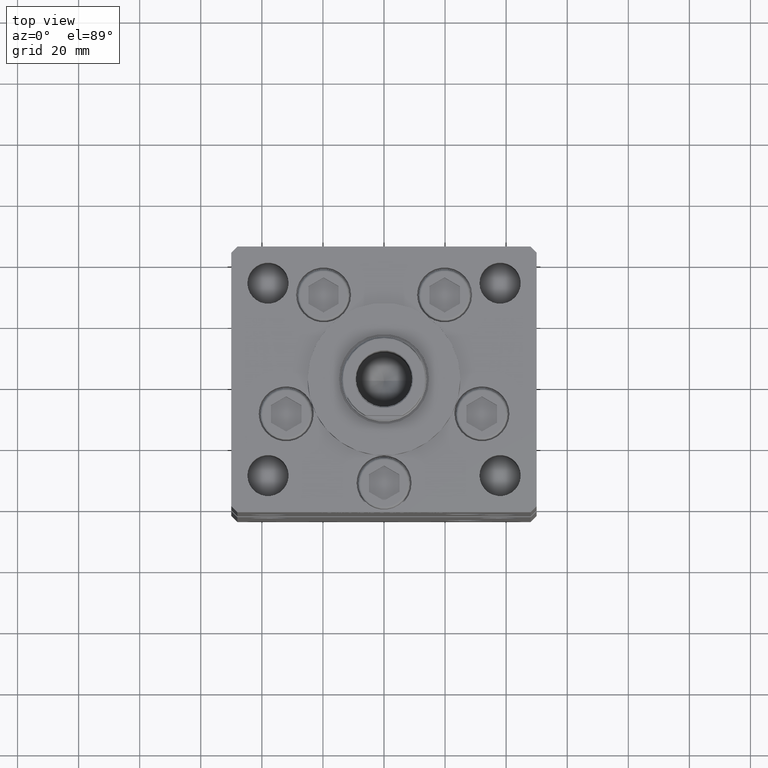
[diagram: clean part render]
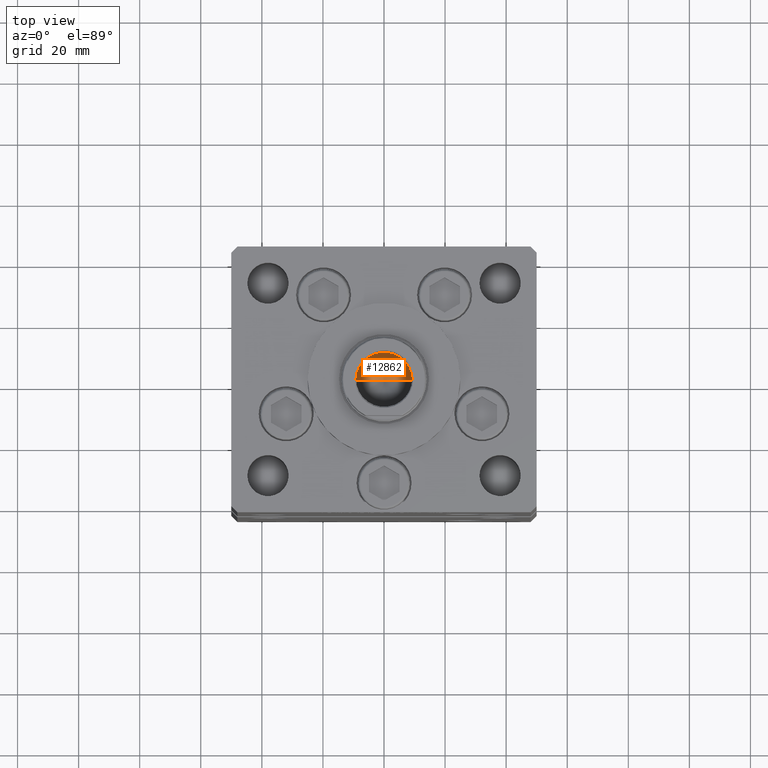
[diagram: same view with one face highlighted and labeled with its STEP entity id]
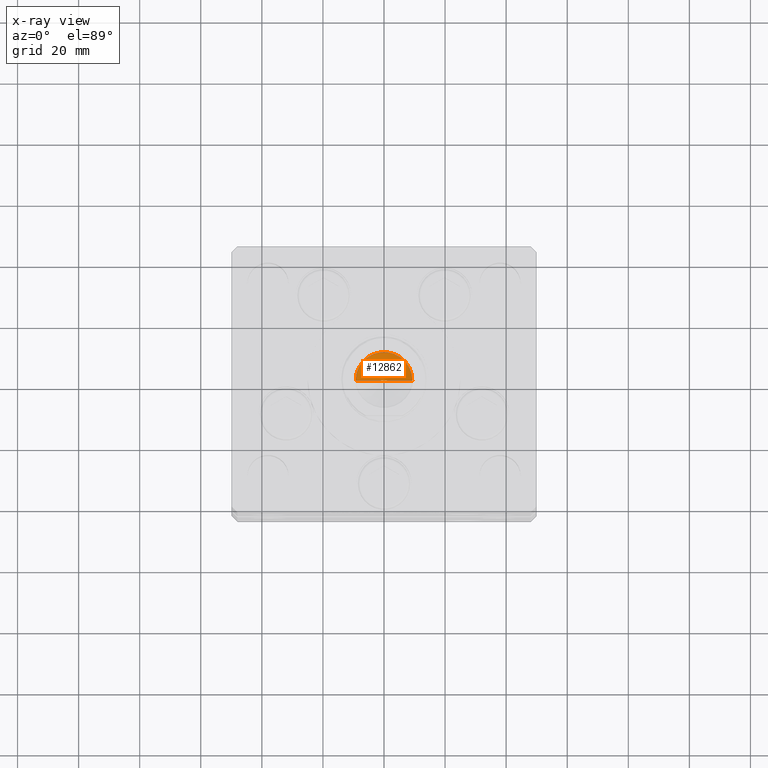
[diagram: x-ray of the same camera — body ghosted, the highlighted face saturated]
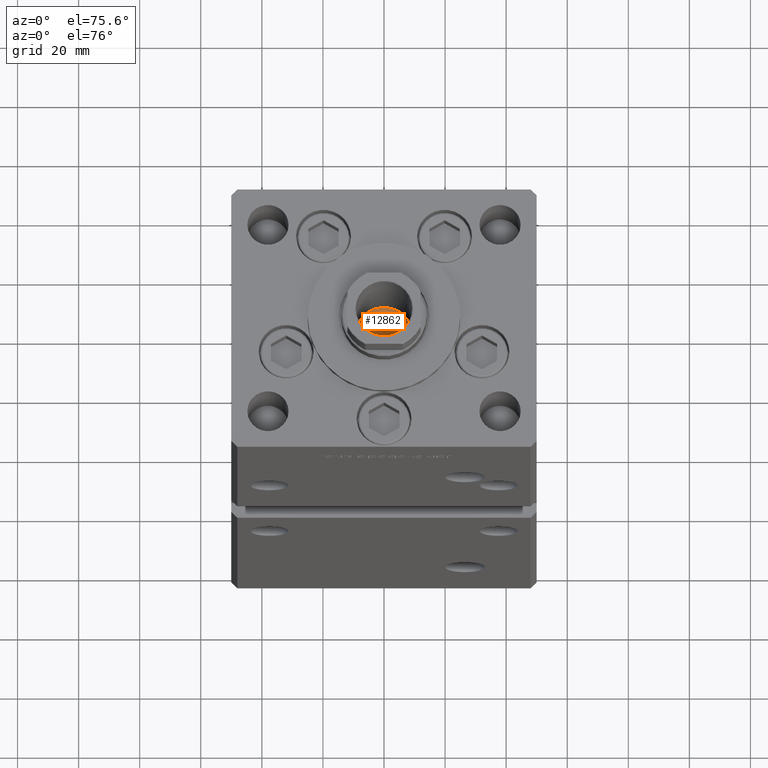
[diagram: same view with one face highlighted and labeled with its STEP entity id]
A machine part, top view. The second image highlights one B-rep face of the part: STEP entity #12862.
The next image is the same camera in x-ray: the body ghosted, the highlighted face saturated — about 0% of this face is hidden behind the body in this view.
A second angle (auxiliary view) of the same face is appended — the face is thin or edge-on in the first view.
In plain terms, the highlighted conical surface has half-angle 59 deg.
Its self-contained STEP definition (entity closure, byte-faithful):
#2454 = DIRECTION ( 'NONE',  ( -0.000000000000000000, -0.000000000000000000, 1.000000000000000000 ) ) ;
#7386 = ORIENTED_EDGE ( 'NONE', *, *, #11976, .T. ) ;
#10672 = DIRECTION ( 'NONE',  ( -0.8571673007021117785, 1.049727191138617956E-16, 0.5150380749100550437 ) ) ;
#11976 = EDGE_CURVE ( 'NONE', #41357, #48078, #32879, .T. ) ;
#12862 = ADVANCED_FACE ( 'NONE', ( #40109 ), #25953, .F. ) ;
#12989 = CARTESIAN_POINT ( 'NONE',  ( 9.249999999999994671, 0.000000000000000000, 130.2500000000000000 ) ) ;
#14711 = LINE ( 'NONE', #30841, #50354 ) ;
#15712 = DIRECTION ( 'NONE',  ( 0.8571673007021117785, 0.000000000000000000, 0.5150380749100550437 ) ) ;
#15793 = EDGE_LOOP ( 'NONE', ( #45981, #16406, #7386 ) ) ;
#16406 = ORIENTED_EDGE ( 'NONE', *, *, #26868, .T. ) ;
#18433 = CARTESIAN_POINT ( 'NONE',  ( -9.249999999999994671, 1.132798289211300909E-15, 130.2500000000000000 ) ) ;
#19901 = AXIS2_PLACEMENT_3D ( 'NONE', #36860, #37133, #19940 ) ;
#19940 = DIRECTION ( 'NONE',  ( 1.000000000000000000, 0.000000000000000000, 0.000000000000000000 ) ) ;
#22011 = VECTOR ( 'NONE', #15712, 1000.000000000000000 ) ;
#22977 = LINE ( 'NONE', #27556, #22011 ) ;
#25863 = EDGE_CURVE ( 'NONE', #50314, #48078, #14711, .T. ) ;
#25953 = CONICAL_SURFACE ( 'NONE', #19901, 9.249999999999994671, 1.029744258676653423 ) ;
#26868 = EDGE_CURVE ( 'NONE', #50314, #41357, #22977, .T. ) ;
#27556 = CARTESIAN_POINT ( 'NONE',  ( 9.249999999999994671, 0.000000000000000000, 130.2500000000000000 ) ) ;
#30841 = CARTESIAN_POINT ( 'NONE',  ( -9.249999999999994671, 1.132798289211300909E-15, 130.2500000000000000 ) ) ;
#32879 = CIRCLE ( 'NONE', #43927, 9.249999999999994671 ) ;
#36860 = CARTESIAN_POINT ( 'NONE',  ( 0.000000000000000000, 0.000000000000000000, 130.2500000000000000 ) ) ;
#37133 = DIRECTION ( 'NONE',  ( -0.000000000000000000, -0.000000000000000000, 1.000000000000000000 ) ) ;
#39254 = CARTESIAN_POINT ( 'NONE',  ( 0.000000000000000000, 0.000000000000000000, 130.2500000000000000 ) ) ;
#40047 = DIRECTION ( 'NONE',  ( 1.000000000000000000, 0.000000000000000000, 0.000000000000000000 ) ) ;
#40109 = FACE_OUTER_BOUND ( 'NONE', #15793, .T. ) ;
#41357 = VERTEX_POINT ( 'NONE', #12989 ) ;
#41359 = CARTESIAN_POINT ( 'NONE',  ( -1.046994375366439223E-14, 0.000000000000000000, 124.6920392739950643 ) ) ;
#43927 = AXIS2_PLACEMENT_3D ( 'NONE', #39254, #2454, #40047 ) ;
#45981 = ORIENTED_EDGE ( 'NONE', *, *, #25863, .F. ) ;
#48078 = VERTEX_POINT ( 'NONE', #18433 ) ;
#50314 = VERTEX_POINT ( 'NONE', #41359 ) ;
#50354 = VECTOR ( 'NONE', #10672, 1000.000000000000000 ) ;